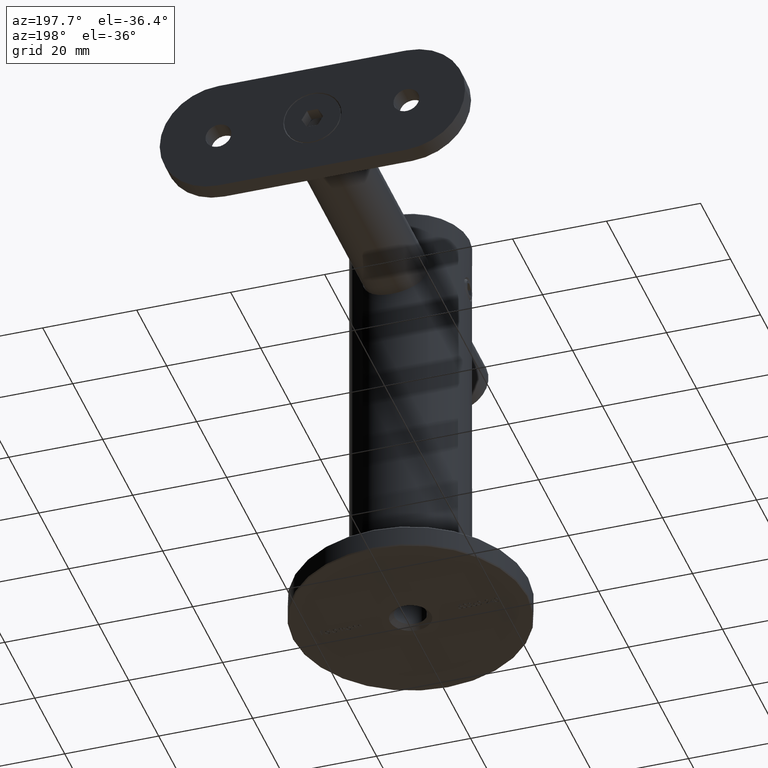
[diagram: clean part render]
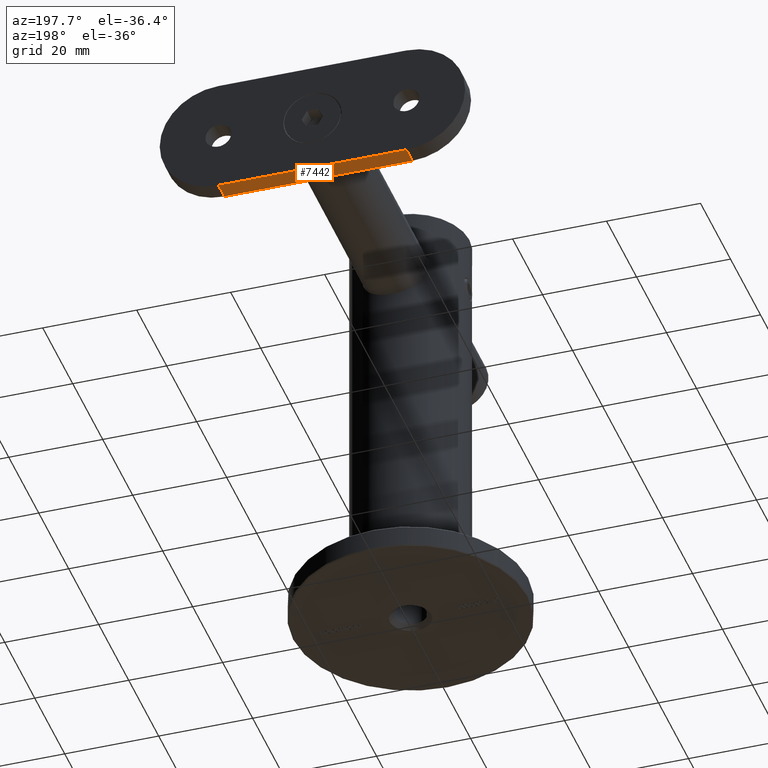
[diagram: same view with one face highlighted and labeled with its STEP entity id]
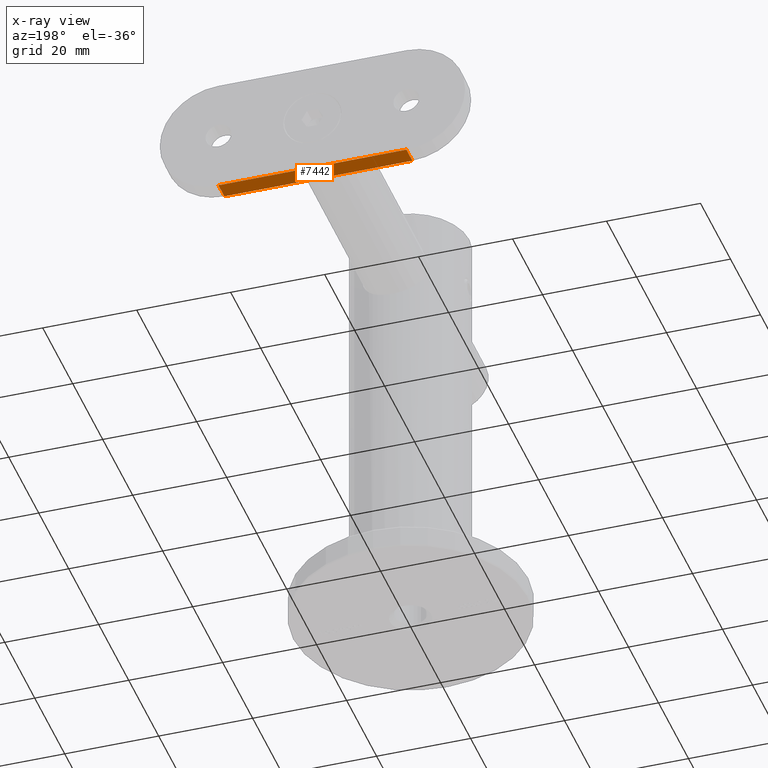
[diagram: x-ray of the same camera — body ghosted, the highlighted face saturated]
A machine part, auxiliary view. The second image highlights one B-rep face of the part: STEP entity #7442.
The next image is the same camera in x-ray: the body ghosted, the highlighted face saturated — about 0% of this face is hidden behind the body in this view.
In plain terms, the highlighted planar face has unit normal (-0, -0, 1).
Its self-contained STEP definition (entity closure, byte-faithful):
#1354 = ORIENTED_EDGE ( 'NONE', *, *, #10984, .T. ) ;
#1527 = DIRECTION ( 'NONE',  ( -0.0000000000000000000, 0.0000000000000000000, -1.000000000000000000 ) ) ;
#2082 = CARTESIAN_POINT ( 'NONE',  ( -12.50000000000000000, 3.999999999999996400, 20.00000000000000000 ) ) ;
#3831 = CARTESIAN_POINT ( 'NONE',  ( -12.50000000000000000, 3.999999999999996400, 20.00000000000000000 ) ) ;
#4443 = VECTOR ( 'NONE', #10910, 1000.000000000000000 ) ;
#4554 = DIRECTION ( 'NONE',  ( 1.000000000000000000, 0.0000000000000000000, -0.0000000000000000000 ) ) ;
#5230 = LINE ( 'NONE', #10614, #10114 ) ;
#5504 = ORIENTED_EDGE ( 'NONE', *, *, #12081, .F. ) ;
#5957 = PLANE ( 'NONE',  #12629 ) ;
#7000 = VERTEX_POINT ( 'NONE', #16217 ) ;
#7442 = ADVANCED_FACE ( 'NONE', ( #12303 ), #5957, .F. ) ;
#7869 = CARTESIAN_POINT ( 'NONE',  ( -12.50000000000000000, -3.469446951953614200E-015, -20.00000000000000400 ) ) ;
#7877 = ORIENTED_EDGE ( 'NONE', *, *, #16897, .T. ) ;
#8605 = EDGE_CURVE ( 'NONE', #16737, #15491, #14415, .T. ) ;
#9671 = LINE ( 'NONE', #7869, #17752 ) ;
#9685 = EDGE_LOOP ( 'NONE', ( #14849, #1354, #5504, #7877 ) ) ;
#10114 = VECTOR ( 'NONE', #17916, 1000.000000000000000 ) ;
#10124 = VERTEX_POINT ( 'NONE', #14780 ) ;
#10614 = CARTESIAN_POINT ( 'NONE',  ( -12.50000000000000000, -3.370833141065685400E-015, 32.50000000000000000 ) ) ;
#10910 = DIRECTION ( 'NONE',  ( -0.0000000000000000000, 1.000000000000000000, -0.0000000000000000000 ) ) ;
#10984 = EDGE_CURVE ( 'NONE', #15491, #7000, #9671, .T. ) ;
#11527 = CARTESIAN_POINT ( 'NONE',  ( -12.50000000000000000, 3.999999999999996400, -20.00000000000000400 ) ) ;
#12081 = EDGE_CURVE ( 'NONE', #10124, #7000, #5230, .T. ) ;
#12303 = FACE_OUTER_BOUND ( 'NONE', #9685, .T. ) ;
#12384 = DIRECTION ( 'NONE',  ( -0.0000000000000000000, -0.0000000000000000000, -1.000000000000000000 ) ) ;
#12629 = AXIS2_PLACEMENT_3D ( 'NONE', #16328, #4554, #1527 ) ;
#13981 = DIRECTION ( 'NONE',  ( 0.0000000000000000000, -1.000000000000000000, 0.0000000000000000000 ) ) ;
#14415 = LINE ( 'NONE', #15362, #17880 ) ;
#14780 = CARTESIAN_POINT ( 'NONE',  ( -12.50000000000000000, -3.370833141065685400E-015, 20.00000000000000000 ) ) ;
#14849 = ORIENTED_EDGE ( 'NONE', *, *, #8605, .T. ) ;
#15318 = LINE ( 'NONE', #2082, #4443 ) ;
#15362 = CARTESIAN_POINT ( 'NONE',  ( -12.50000000000000000, 3.999999999999996400, 32.50000000000000000 ) ) ;
#15491 = VERTEX_POINT ( 'NONE', #11527 ) ;
#16217 = CARTESIAN_POINT ( 'NONE',  ( -12.50000000000000000, -3.370833141065685400E-015, -20.00000000000000400 ) ) ;
#16328 = CARTESIAN_POINT ( 'NONE',  ( -12.50000000000000000, 3.999999999999996400, 32.50000000000000000 ) ) ;
#16737 = VERTEX_POINT ( 'NONE', #3831 ) ;
#16897 = EDGE_CURVE ( 'NONE', #10124, #16737, #15318, .T. ) ;
#17752 = VECTOR ( 'NONE', #13981, 1000.000000000000000 ) ;
#17880 = VECTOR ( 'NONE', #12384, 1000.000000000000000 ) ;
#17916 = DIRECTION ( 'NONE',  ( -0.0000000000000000000, -0.0000000000000000000, -1.000000000000000000 ) ) ;